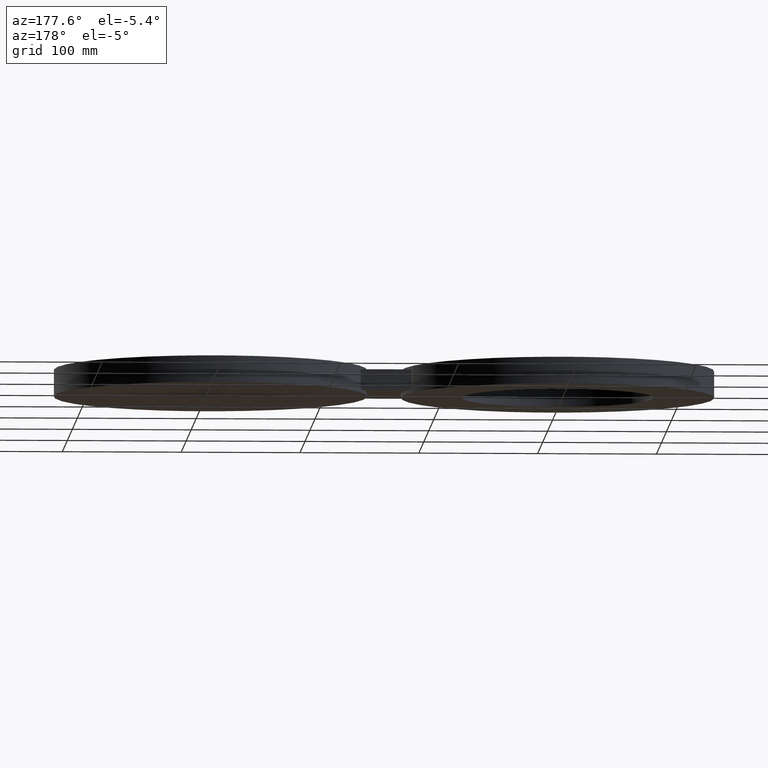
[diagram: clean part render]
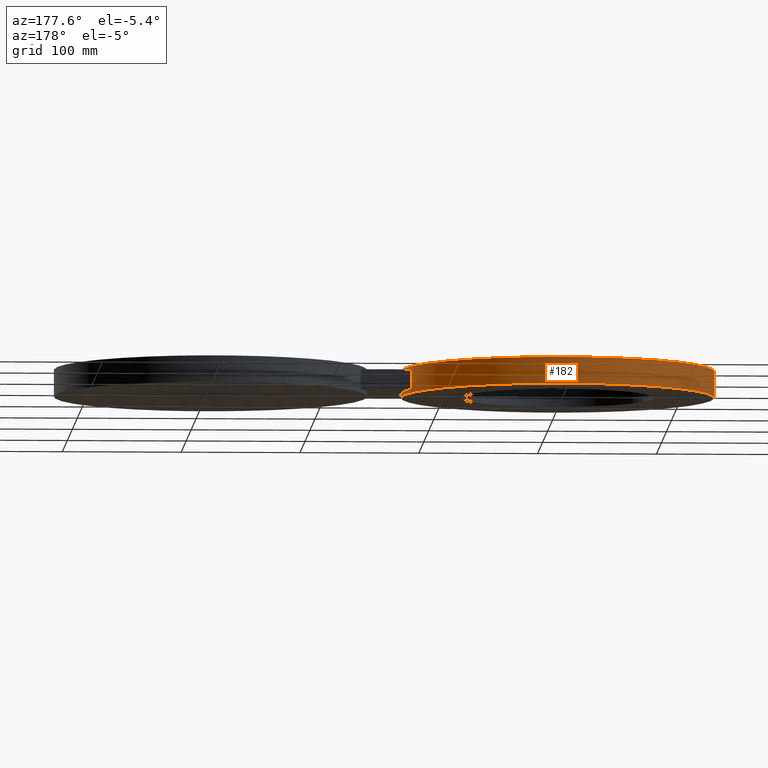
[diagram: same view with one face highlighted and labeled with its STEP entity id]
A machine part, auxiliary view. The second image highlights one B-rep face of the part: STEP entity #182.
In plain terms, the highlighted cylindrical surface (partial cylindrical patch) has radius 131.826 mm, axis along (0, 0, 1).
Its self-contained STEP definition (entity closure, byte-faithful):
#82=AXIS2_PLACEMENT_3D('Circle Axis2P3D',#80,#81,$) ;
#123=AXIS2_PLACEMENT_3D('Cylinder Axis2P3D',#120,#121,#122) ;
#136=AXIS2_PLACEMENT_3D('Circle Axis2P3D',#134,#135,$) ;
#155=AXIS2_PLACEMENT_3D('Circle Axis2P3D',#153,#154,$) ;
#169=AXIS2_PLACEMENT_3D('Circle Axis2P3D',#167,#168,$) ;
#80=CARTESIAN_POINT('Axis2P3D Location',(0.,0.,0.440000000002)) ;
#84=CARTESIAN_POINT('Vertex',(5.19000000002,0.,0.440000000002)) ;
#86=CARTESIAN_POINT('Vertex',(-5.19000000002,6.3559168876E-016,0.440000000002)) ;
#120=CARTESIAN_POINT('Axis2P3D Location',(0.,0.,0.)) ;
#125=CARTESIAN_POINT('Line Origine',(5.19000000002,0.,0.)) ;
#129=CARTESIAN_POINT('Vertex',(5.19000000002,0.,-0.440000000002)) ;
#131=CARTESIAN_POINT('Vertex',(5.19000000002,0.,-0.330000000001)) ;
#134=CARTESIAN_POINT('Axis2P3D Location',(0.,0.,-0.440000000002)) ;
#138=CARTESIAN_POINT('Vertex',(-5.19000000002,6.3559168876E-016,-0.440000000002)) ;
#141=CARTESIAN_POINT('Line Origine',(-5.19000000002,6.3559168876E-016,0.)) ;
#146=CARTESIAN_POINT('Line Origine',(5.19000000002,0.,0.)) ;
#150=CARTESIAN_POINT('Vertex',(5.19000000002,0.,0.330000000001)) ;
#153=CARTESIAN_POINT('Axis2P3D Location',(0.,0.,0.330000000001)) ;
#157=CARTESIAN_POINT('Vertex',(4.90713765857,1.69000000001,0.330000000001)) ;
#160=CARTESIAN_POINT('Line Origine',(4.90713765857,1.69000000001,0.)) ;
#164=CARTESIAN_POINT('Vertex',(4.90713765857,1.69000000001,-0.330000000001)) ;
#167=CARTESIAN_POINT('Axis2P3D Location',(0.,0.,-0.330000000001)) ;
#81=DIRECTION('Axis2P3D Direction',(0.,0.,0.0393700787402)) ;
#121=DIRECTION('Axis2P3D Direction',(0.,0.,0.0393700787402)) ;
#122=DIRECTION('Axis2P3D XDirection',(-0.0393700787402,4.82144409113E-018,0.)) ;
#126=DIRECTION('Vector Direction',(0.,0.,0.0393700787402)) ;
#135=DIRECTION('Axis2P3D Direction',(0.,0.,0.0393700787402)) ;
#142=DIRECTION('Vector Direction',(0.,0.,0.0393700787402)) ;
#147=DIRECTION('Vector Direction',(0.,0.,0.0393700787402)) ;
#154=DIRECTION('Axis2P3D Direction',(0.,0.,0.0393700787402)) ;
#161=DIRECTION('Vector Direction',(0.,0.,0.0393700787402)) ;
#168=DIRECTION('Axis2P3D Direction',(0.,0.,0.0393700787402)) ;
#127=VECTOR('Line Direction',#126,0.0393700787402) ;
#143=VECTOR('Line Direction',#142,0.0393700787402) ;
#148=VECTOR('Line Direction',#147,0.0393700787402) ;
#162=VECTOR('Line Direction',#161,0.0393700787402) ;
#173=ORIENTED_EDGE('',*,*,#133,.F.) ;
#174=ORIENTED_EDGE('',*,*,#140,.T.) ;
#175=ORIENTED_EDGE('',*,*,#145,.T.) ;
#176=ORIENTED_EDGE('',*,*,#88,.F.) ;
#177=ORIENTED_EDGE('',*,*,#152,.F.) ;
#178=ORIENTED_EDGE('',*,*,#159,.T.) ;
#179=ORIENTED_EDGE('',*,*,#166,.F.) ;
#180=ORIENTED_EDGE('',*,*,#171,.F.) ;
#182=ADVANCED_FACE('PartBody',(#181),#124,.T.) ;
#83=CIRCLE('generated circle',#82,5.19000000002) ;
#137=CIRCLE('generated circle',#136,5.19000000002) ;
#156=CIRCLE('generated circle',#155,5.19000000002) ;
#170=CIRCLE('generated circle',#169,5.19000000002) ;
#124=CYLINDRICAL_SURFACE('generated cylinder',#123,5.19000000002) ;
#88=EDGE_CURVE('',#85,#87,#83,.T.) ;
#133=EDGE_CURVE('',#130,#132,#128,.T.) ;
#140=EDGE_CURVE('',#130,#139,#137,.T.) ;
#145=EDGE_CURVE('',#139,#87,#144,.T.) ;
#152=EDGE_CURVE('',#151,#85,#149,.T.) ;
#159=EDGE_CURVE('',#151,#158,#156,.T.) ;
#166=EDGE_CURVE('',#165,#158,#163,.T.) ;
#171=EDGE_CURVE('',#132,#165,#170,.T.) ;
#172=EDGE_LOOP('',(#173,#174,#175,#176,#177,#178,#179,#180)) ;
#181=FACE_OUTER_BOUND('',#172,.T.) ;
#128=LINE('Line',#125,#127) ;
#144=LINE('Line',#141,#143) ;
#149=LINE('Line',#146,#148) ;
#163=LINE('Line',#160,#162) ;
#85=VERTEX_POINT('',#84) ;
#87=VERTEX_POINT('',#86) ;
#130=VERTEX_POINT('',#129) ;
#132=VERTEX_POINT('',#131) ;
#139=VERTEX_POINT('',#138) ;
#151=VERTEX_POINT('',#150) ;
#158=VERTEX_POINT('',#157) ;
#165=VERTEX_POINT('',#164) ;